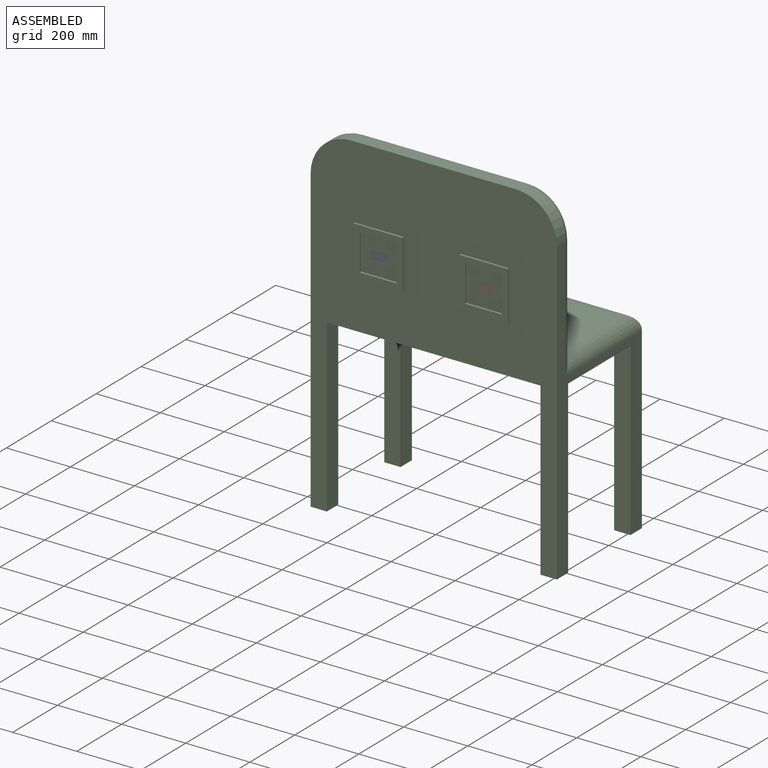
[diagram: assembled view]
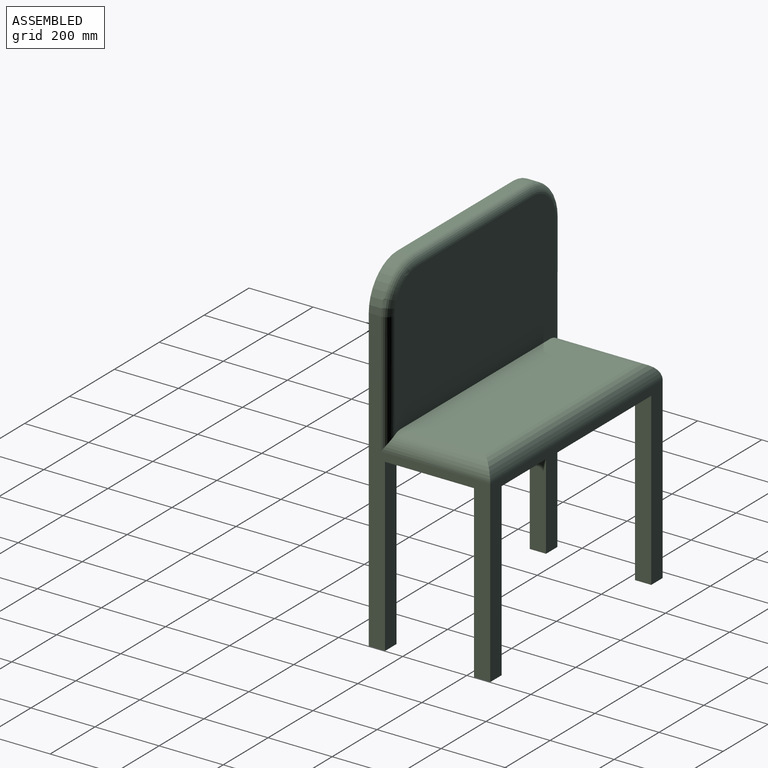
[diagram: assembled view, second angle]
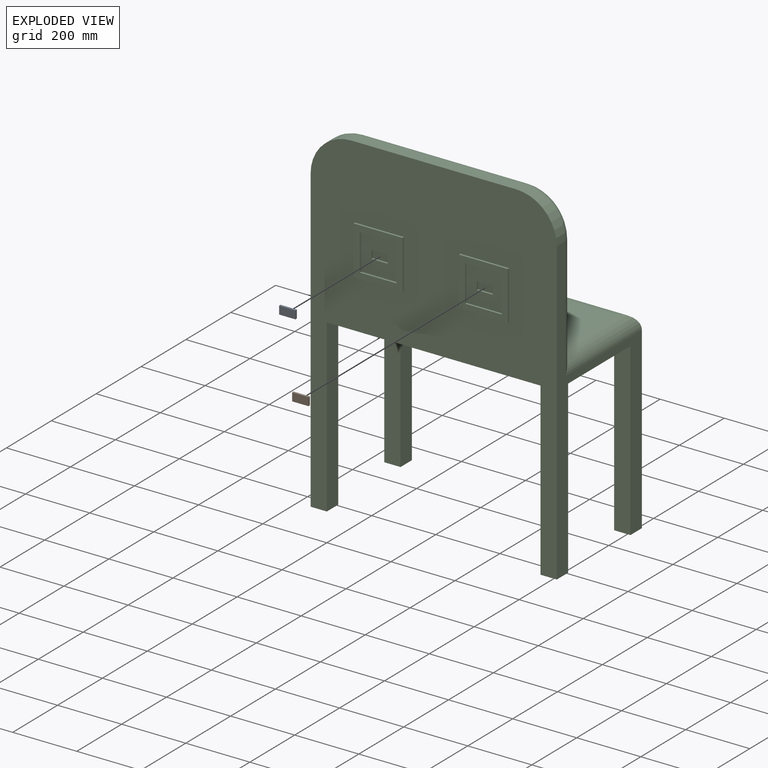
[diagram: exploded view]
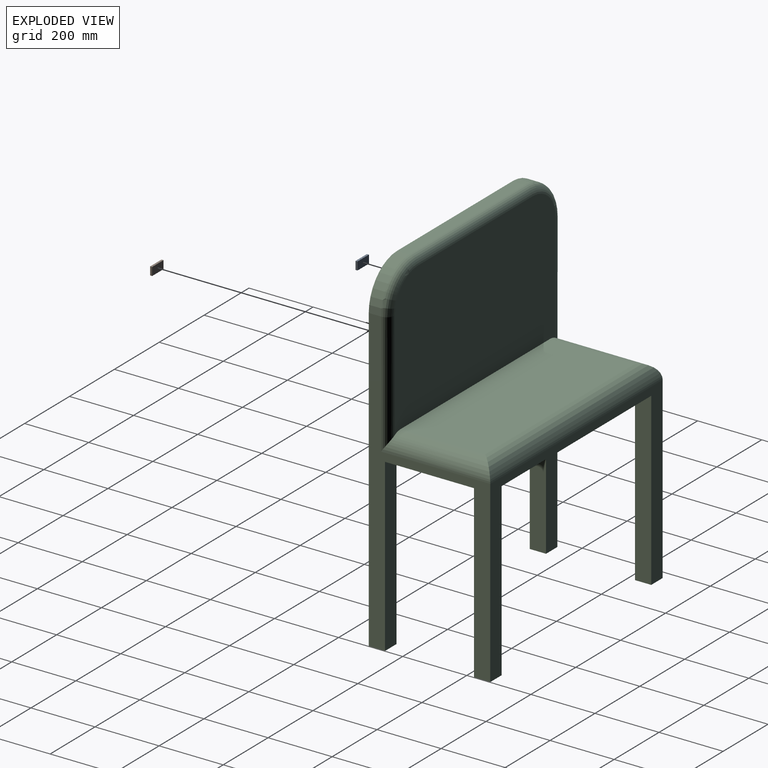
[diagram: exploded view, second angle]
ASSEMBLY  parts=3 mates=2
PART A: 6 faces, bbox 50.8x6.4x25.4 mm
  f0: plane 25.4x6.35mm, normal (1,0,0), area 161.3mm2, adj f1,f3,f4,f5
  f1: plane 50.8x6.35mm, normal (0,0,1), area 322.6mm2, adj f0,f2,f4,f5
  f2: plane 25.4x6.35mm, normal (-1,0,0), area 161.3mm2, adj f1,f3,f4,f5
  f3: plane 50.8x6.35mm, normal (0,0,-1), area 322.6mm2, adj f0,f2,f4,f5
  f4: plane 50.8x25.4mm, normal (0,-1,0), area 1290.3mm2, adj f0,f1,f2,f3
  f5: plane 50.8x25.4mm, normal (0,1,0), area 1290.3mm2, adj f0,f1,f2,f3
PART B: same geometry as A
PART C: 60 faces, bbox 789.2x385.5x1077.3 mm
  f0: plane 1066.8x768.31mm, normal (0,-1,0), area 410637mm2, adj f4,f7,f8,f9,f11,f15,f17,f19
  f1: plane 666.71x264.81mm, normal (0,0,1), area 176552.2mm2, adj f18,f22,f23,f24
  f2: plane 533.4x50.8mm, normal (-1,0,0), area 27096.7mm2, adj f3,f5,f6,f8
  f3: plane 533.4x50.8mm, normal (0,-1,0), area 27096.7mm2, adj f2,f4,f6,f8
  f4: plane 939.8x379.11mm, normal (1,0,0), area 78338.9mm2, adj f0,f3,f5,f6,f8,f9,f10,f21
  f5: plane 768.31x558.8mm, normal (0,1,0), area 73708.6mm2, adj f2,f4,f6,f7,f8,f12,f14,f23
  f6: plane 50.8x50.8mm, normal (0,0,-1), area 2580.6mm2, adj f2,f3,f4,f5
  f7: plane 939.8x379.11mm, normal (-1,0,0), area 78338.9mm2, adj f0,f5,f8,f12,f13,f15,f16,f20
  f8: plane 768.31x379.11mm, normal (0,0,-1), area 280952.5mm2, adj f0,f2,f3,f4,f5,f7,f10,f11
  f9: plane 50.8x50.8mm, normal (0,0,-1), area 2580.6mm2, adj f0,f4,f10,f11
  f10: plane 533.4x50.8mm, normal (0,1,0), area 27096.7mm2, adj f4,f8,f9,f11
  f11: plane 533.4x50.8mm, normal (-1,0,0), area 27096.7mm2, adj f0,f8,f9,f10
  f12: plane 50.8x50.8mm, normal (0,0,-1), area 2580.6mm2, adj f5,f7,f13,f14
  f13: plane 533.4x50.8mm, normal (0,-1,0), area 27096.7mm2, adj f7,f8,f12,f14
  f14: plane 533.4x50.8mm, normal (1,0,0), area 27096.7mm2, adj f5,f8,f12,f13
  f15: plane 50.8x50.8mm, normal (0,0,-1), area 2580.6mm2, adj f0,f7,f16,f17
  f16: plane 533.4x50.8mm, normal (0,1,0), area 27096.7mm2, adj f7,f8,f15,f17
  f17: plane 533.4x50.8mm, normal (1,0,0), area 27096.7mm2, adj f0,f8,f15,f16
  f18: plane 717.51x438.61mm, normal (0,1,0), area 305503.2mm2, adj f1,f22,f24,f25,f26,f27,f28,f29
  f19: plane 514.31x38.1mm, normal (0,0,1), area 19595.3mm2, adj f0,f20,f21,f27
  f20: cylinder r=127mm len=127mm, axis (0,-1,0), area 7600.6mm2, adj f0,f7,f19,f28
  f21: cylinder r=127mm len=127mm, axis (0,-1,0), area 7600.6mm2, adj f0,f4,f19,f26
  f22: cylinder r=50.8mm len=341.01mm, axis (0,-1,0), area 24223.3mm2, adj f1,f4,f18,f23,f25
  f23: cylinder r=50.8mm len=768.31mm, axis (1,0,0), area 58362.5mm2, adj f1,f5,f22,f24
  f24: cylinder r=50.8mm len=341.01mm, axis (0,-1,0), area 24223.3mm2, adj f1,f7,f18,f23,f29
  f25: cylinder r=25.4mm len=381mm, axis (0,0,-1), area 14206.3mm2, adj f4,f18,f22,f26
  f26: torus R=101.6mm, axis (0,1,0), area 7380.9mm2, adj f18,f21,f25,f27
  f27: cylinder r=25.4mm len=514.31mm, axis (1,0,0), area 20520.1mm2, adj f18,f19,f26,f28
  f28: torus R=101.6mm, axis (0,1,0), area 7380.9mm2, adj f18,f20,f27,f29
  f29: cylinder r=25.4mm len=381mm, axis (0,0,-1), area 14206.3mm2, adj f7,f18,f24,f28
  f30: plane 114.3x6.35mm, normal (1,0,0), area 725.8mm2, adj f31,f37,f38,f39
  f31: plane 114.3x6.35mm, normal (0,0,-1), area 725.8mm2, adj f30,f32,f38,f39
  f32: plane 114.3x6.35mm, normal (-1,0,0), area 725.8mm2, adj f31,f37,f38,f39
  f33: plane 152.4x6.35mm, normal (1,0,0), area 967.7mm2, adj f0,f34,f36,f38
  f34: plane 152.4x6.35mm, normal (0,0,1), area 967.7mm2, adj f0,f33,f35,f38
  f35: plane 152.4x6.35mm, normal (-1,0,0), area 967.7mm2, adj f0,f34,f36,f38
  f36: plane 152.4x6.35mm, normal (0,0,-1), area 967.7mm2, adj f0,f33,f35,f38
  f37: plane 114.3x6.35mm, normal (0,0,1), area 725.8mm2, adj f30,f32,f38,f39
  f38: plane 152.4x152.4mm, normal (0,-1,0), area 10161.3mm2, adj f30,f31,f32,f33,f34,f35,f36,f37
  f39: plane 114.3x114.3mm, normal (0,-1,0), area 11774.2mm2, adj f30,f31,f32,f37,f55,f56,f57,f58
  f40: plane 114.3x6.35mm, normal (1,0,0), area 725.8mm2, adj f41,f47,f48,f49
  f41: plane 114.3x6.35mm, normal (0,0,-1), area 725.8mm2, adj f40,f42,f48,f49
  f42: plane 114.3x6.35mm, normal (-1,0,0), area 725.8mm2, adj f41,f47,f48,f49
  f43: plane 152.4x6.35mm, normal (1,0,0), area 967.7mm2, adj f0,f44,f46,f48
  f44: plane 152.4x6.35mm, normal (0,0,1), area 967.7mm2, adj f0,f43,f45,f48
  f45: plane 152.4x6.35mm, normal (-1,0,0), area 967.7mm2, adj f0,f44,f46,f48
  f46: plane 152.4x6.35mm, normal (0,0,-1), area 967.7mm2, adj f0,f43,f45,f48
  f47: plane 114.3x6.35mm, normal (0,0,1), area 725.8mm2, adj f40,f42,f48,f49
  f48: plane 152.4x152.4mm, normal (0,-1,0), area 10161.3mm2, adj f40,f41,f42,f43,f44,f45,f46,f47
  f49: plane 114.3x114.3mm, normal (0,-1,0), area 11774.2mm2, adj f40,f41,f42,f47,f50,f51,f52,f53
  f50: plane 25.4x6.35mm, normal (-1,0,0), area 161.3mm2, adj f49,f51,f53,f54
  f51: plane 50.8x6.35mm, normal (0,0,-1), area 322.6mm2, adj f49,f50,f52,f54
  f52: plane 25.4x6.35mm, normal (1,0,0), area 161.3mm2, adj f49,f51,f53,f54
  f53: plane 50.8x6.35mm, normal (0,0,1), area 322.6mm2, adj f49,f50,f52,f54
  f54: plane 50.8x25.4mm, normal (0,-1,0), area 1290.3mm2, adj f50,f51,f52,f53
  f55: plane 25.4x6.35mm, normal (-1,0,0), area 161.3mm2, adj f39,f56,f58,f59
  f56: plane 50.8x6.35mm, normal (0,0,-1), area 322.6mm2, adj f39,f55,f57,f59
  f57: plane 25.4x6.35mm, normal (1,0,0), area 161.3mm2, adj f39,f56,f58,f59
  f58: plane 50.8x6.35mm, normal (0,0,1), area 322.6mm2, adj f39,f55,f57,f59
  f59: plane 50.8x25.4mm, normal (0,-1,0), area 1290.3mm2, adj f55,f56,f57,f58
PLACE A t=(-318.55,-75.08,515.77)mm
PLACE B t=(9.92,-75.08,515.77)mm
PLACE C t=(174.15,241.55,-246.56)mm fixed
MATE fastened A.f5 <-> C.f59  axis (0,1,0) through (-318.55,-75.08,515.77)mm
MATE fastened B.f5 <-> C.f54  axis (0,1,0) through (9.92,-75.08,515.77)mm
